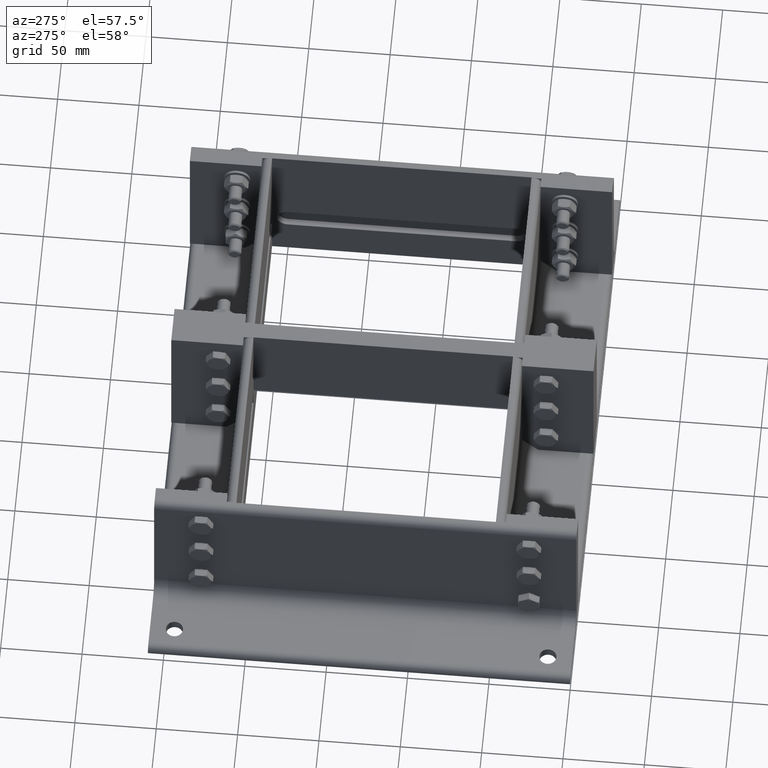
[diagram: clean part render]
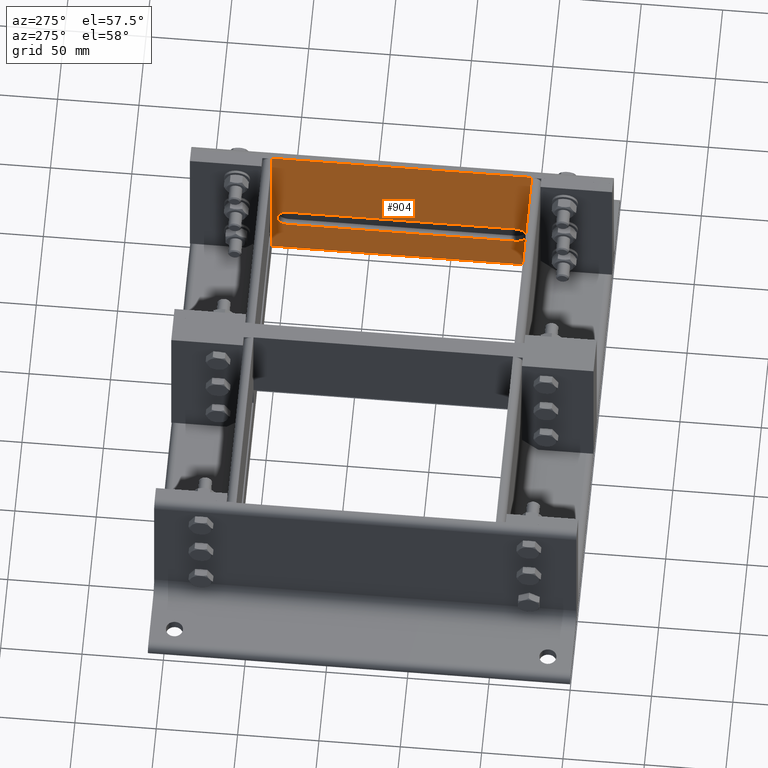
[diagram: same view with one face highlighted and labeled with its STEP entity id]
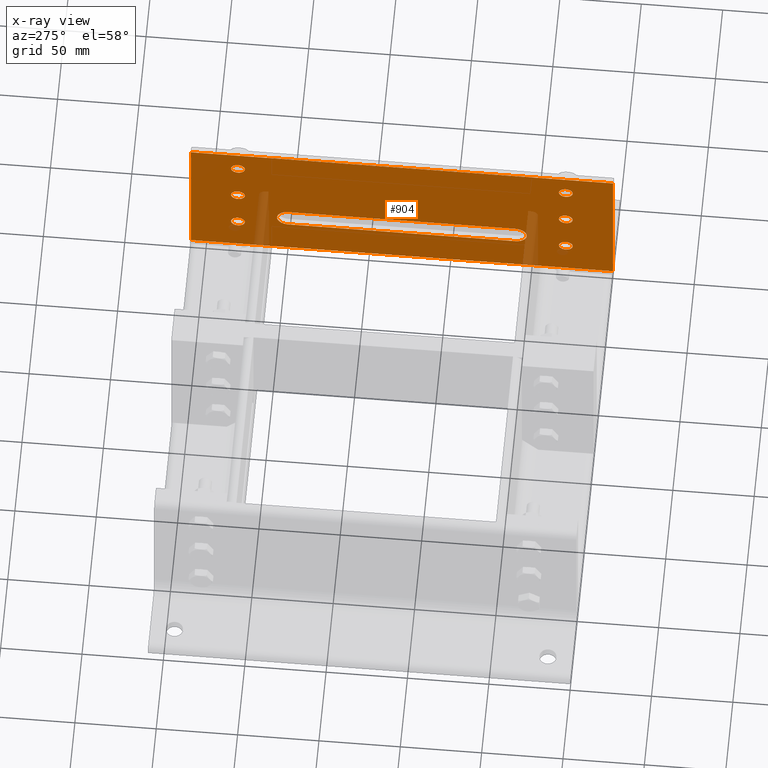
[diagram: x-ray of the same camera — body ghosted, the highlighted face saturated]
A machine part, auxiliary view. The second image highlights one B-rep face of the part: STEP entity #904.
The next image is the same camera in x-ray: the body ghosted, the highlighted face saturated — about 4% of this face is hidden behind the body in this view.
In plain terms, the highlighted planar face has unit normal (-1, 0, 0).
Its self-contained STEP definition (entity closure, byte-faithful):
#409=CARTESIAN_POINT('',(1.221245E-014,0.0,100.0));
#410=VERTEX_POINT('',#409);
#417=CARTESIAN_POINT('',(0.0,0.0,0.0));
#418=VERTEX_POINT('',#417);
#419=CARTESIAN_POINT('',(1.221245E-014,0.0,100.0));
#420=DIRECTION('',(0.0,0.0,-1.0));
#421=VECTOR('',#420,100.0);
#422=LINE('',#419,#421);
#423=EDGE_CURVE('',#410,#418,#422,.T.);
#473=CARTESIAN_POINT('',(1.221245E-014,259.5,100.0));
#474=VERTEX_POINT('',#473);
#481=CARTESIAN_POINT('',(1.221245E-014,0.0,100.0));
#482=DIRECTION('',(0.0,1.0,0.0));
#483=VECTOR('',#482,259.5);
#484=LINE('',#481,#483);
#485=EDGE_CURVE('',#410,#474,#484,.T.);
#507=CARTESIAN_POINT('',(7.235879E-015,230.50000000000006,59.249999999999986));
#508=VERTEX_POINT('',#507);
#509=CARTESIAN_POINT('',(0.0,230.50000000000006,55.0));
#510=DIRECTION('',(1.0,0.0,0.0));
#511=DIRECTION('',(0.0,0.0,-1.0));
#512=AXIS2_PLACEMENT_3D('',#509,#510,#511);
#513=CIRCLE('',#512,4.249999999999989);
#514=EDGE_CURVE('',#508,#508,#513,.T.);
#535=CARTESIAN_POINT('',(1.089961E-014,29.000000000000004,89.249999999999986));
#536=VERTEX_POINT('',#535);
#537=CARTESIAN_POINT('',(0.0,29.000000000000004,85.0));
#538=DIRECTION('',(1.0,0.0,0.0));
#539=DIRECTION('',(0.0,0.0,-1.0));
#540=AXIS2_PLACEMENT_3D('',#537,#538,#539);
#541=CIRCLE('',#540,4.249999999999997);
#542=EDGE_CURVE('',#536,#536,#541,.T.);
#563=CARTESIAN_POINT('',(3.572143E-015,29.000000000000014,29.250000000000004));
#564=VERTEX_POINT('',#563);
#565=CARTESIAN_POINT('',(0.0,29.000000000000014,25.0));
#566=DIRECTION('',(1.0,0.0,0.0));
#567=DIRECTION('',(0.0,0.0,-1.0));
#568=AXIS2_PLACEMENT_3D('',#565,#566,#567);
#569=CIRCLE('',#568,4.250000000000001);
#570=EDGE_CURVE('',#564,#564,#569,.T.);
#591=CARTESIAN_POINT('',(7.235879E-015,29.000000000000004,59.25));
#592=VERTEX_POINT('',#591);
#593=CARTESIAN_POINT('',(0.0,29.000000000000004,55.0));
#594=DIRECTION('',(1.0,0.0,0.0));
#595=DIRECTION('',(0.0,0.0,-1.0));
#596=AXIS2_PLACEMENT_3D('',#593,#594,#595);
#597=CIRCLE('',#596,4.25);
#598=EDGE_CURVE('',#592,#592,#597,.T.);
#619=CARTESIAN_POINT('',(3.572143E-015,230.50000000000006,29.249999999999989));
#620=VERTEX_POINT('',#619);
#621=CARTESIAN_POINT('',(0.0,230.50000000000006,25.0));
#622=DIRECTION('',(1.0,0.0,0.0));
#623=DIRECTION('',(0.0,0.0,-1.0));
#624=AXIS2_PLACEMENT_3D('',#621,#622,#623);
#625=CIRCLE('',#624,4.249999999999989);
#626=EDGE_CURVE('',#620,#620,#625,.T.);
#647=CARTESIAN_POINT('',(1.089961E-014,230.50000000000006,89.249999999999986));
#648=VERTEX_POINT('',#647);
#649=CARTESIAN_POINT('',(0.0,230.50000000000006,85.0));
#650=DIRECTION('',(1.0,0.0,0.0));
#651=DIRECTION('',(0.0,0.0,-1.0));
#652=AXIS2_PLACEMENT_3D('',#649,#650,#651);
#653=CIRCLE('',#652,4.249999999999991);
#654=EDGE_CURVE('',#648,#648,#653,.T.);
#664=CARTESIAN_POINT('',(3.175238E-015,60.0,26.000000000000032));
#665=VERTEX_POINT('',#664);
#666=CARTESIAN_POINT('',(3.175238E-015,199.50000000000003,25.999999999999996));
#667=VERTEX_POINT('',#666);
#668=CARTESIAN_POINT('',(3.175238E-015,60.0,26.000000000000036));
#669=DIRECTION('',(0.0,1.0,0.0));
#670=VECTOR('',#669,139.50000000000003);
#671=LINE('',#668,#670);
#672=EDGE_CURVE('',#665,#667,#671,.T.);
#704=CARTESIAN_POINT('',(4.884981E-015,60.0,40.000000000000014));
#705=VERTEX_POINT('',#704);
#706=CARTESIAN_POINT('',(0.0,60.0,33.000000000000028));
#707=DIRECTION('',(1.0,0.0,0.0));
#708=DIRECTION('',(0.0,0.0,1.0));
#709=AXIS2_PLACEMENT_3D('',#706,#707,#708);
#710=CIRCLE('',#709,6.999999999999998);
#711=EDGE_CURVE('',#705,#665,#710,.T.);
#737=CARTESIAN_POINT('',(4.884981E-015,199.50000000000003,40.000000000000014));
#738=VERTEX_POINT('',#737);
#739=CARTESIAN_POINT('',(4.884981E-015,199.50000000000003,40.000000000000014));
#740=DIRECTION('',(0.0,-1.0,0.0));
#741=VECTOR('',#740,139.50000000000003);
#742=LINE('',#739,#741);
#743=EDGE_CURVE('',#738,#705,#742,.T.);
#768=CARTESIAN_POINT('',(0.0,199.50000000000003,33.0));
#769=DIRECTION('',(1.0,0.0,0.0));
#770=DIRECTION('',(0.0,0.0,-1.0));
#771=AXIS2_PLACEMENT_3D('',#768,#769,#770);
#772=CIRCLE('',#771,6.999999999999991);
#773=EDGE_CURVE('',#667,#738,#772,.T.);
#805=CARTESIAN_POINT('',(0.0,259.5,0.0));
#806=VERTEX_POINT('',#805);
#807=CARTESIAN_POINT('',(0.0,0.0,0.0));
#808=DIRECTION('',(0.0,1.0,0.0));
#809=VECTOR('',#808,259.5);
#810=LINE('',#807,#809);
#811=EDGE_CURVE('',#418,#806,#810,.T.);
#864=CARTESIAN_POINT('',(0.0,0.0,0.0));
#865=DIRECTION('',(-1.0,0.0,0.0));
#866=DIRECTION('',(0.0,0.0,1.0));
#867=AXIS2_PLACEMENT_3D('',#864,#865,#866);
#868=PLANE('',#867);
#869=ORIENTED_EDGE('',*,*,#423,.F.);
#870=ORIENTED_EDGE('',*,*,#485,.T.);
#871=CARTESIAN_POINT('',(-1.577722E-030,259.5,0.0));
#872=DIRECTION('',(0.0,0.0,1.0));
#873=VECTOR('',#872,100.0);
#874=LINE('',#871,#873);
#875=EDGE_CURVE('',#806,#474,#874,.T.);
#876=ORIENTED_EDGE('',*,*,#875,.F.);
#877=ORIENTED_EDGE('',*,*,#811,.F.);
#878=EDGE_LOOP('',(#869,#870,#876,#877));
#879=FACE_OUTER_BOUND('',#878,.T.);
#880=ORIENTED_EDGE('',*,*,#514,.T.);
#881=EDGE_LOOP('',(#880));
#882=FACE_BOUND('',#881,.T.);
#883=ORIENTED_EDGE('',*,*,#542,.T.);
#884=EDGE_LOOP('',(#883));
#885=FACE_BOUND('',#884,.T.);
#886=ORIENTED_EDGE('',*,*,#570,.T.);
#887=EDGE_LOOP('',(#886));
#888=FACE_BOUND('',#887,.T.);
#889=ORIENTED_EDGE('',*,*,#598,.T.);
#890=EDGE_LOOP('',(#889));
#891=FACE_BOUND('',#890,.T.);
#892=ORIENTED_EDGE('',*,*,#626,.T.);
#893=EDGE_LOOP('',(#892));
#894=FACE_BOUND('',#893,.T.);
#895=ORIENTED_EDGE('',*,*,#654,.T.);
#896=EDGE_LOOP('',(#895));
#897=FACE_BOUND('',#896,.T.);
#898=ORIENTED_EDGE('',*,*,#672,.T.);
#899=ORIENTED_EDGE('',*,*,#773,.T.);
#900=ORIENTED_EDGE('',*,*,#743,.T.);
#901=ORIENTED_EDGE('',*,*,#711,.T.);
#902=EDGE_LOOP('',(#898,#899,#900,#901));
#903=FACE_BOUND('',#902,.T.);
#904=ADVANCED_FACE('',(#879,#882,#885,#888,#891,#894,#897,#903),#868,.T.);